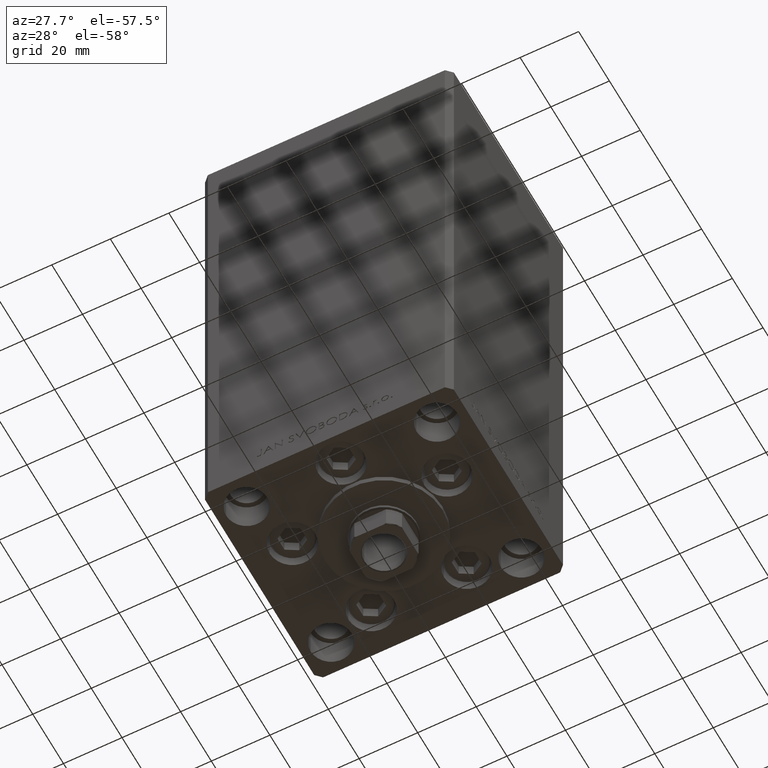
[diagram: clean part render]
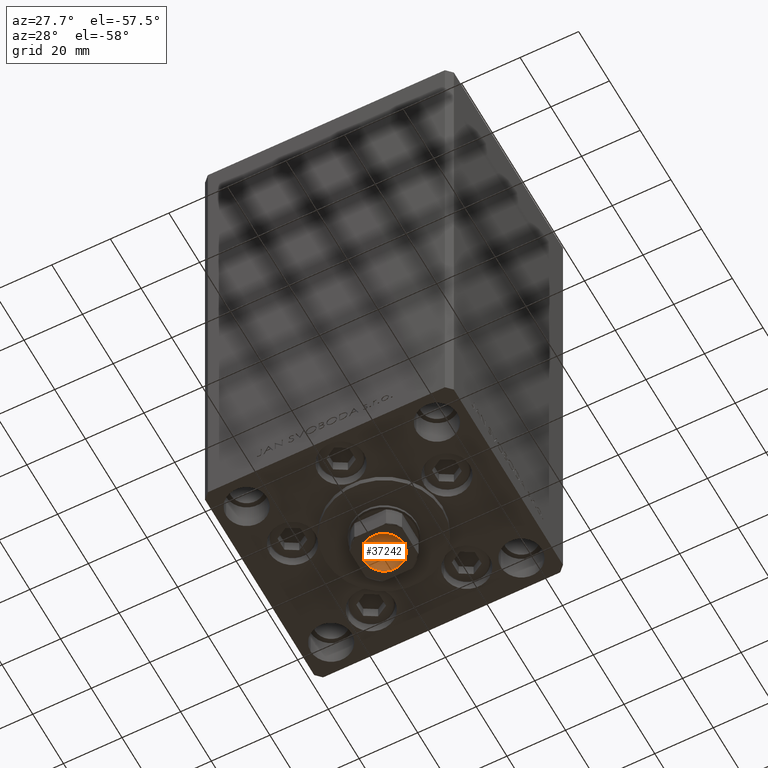
[diagram: same view with one face highlighted and labeled with its STEP entity id]
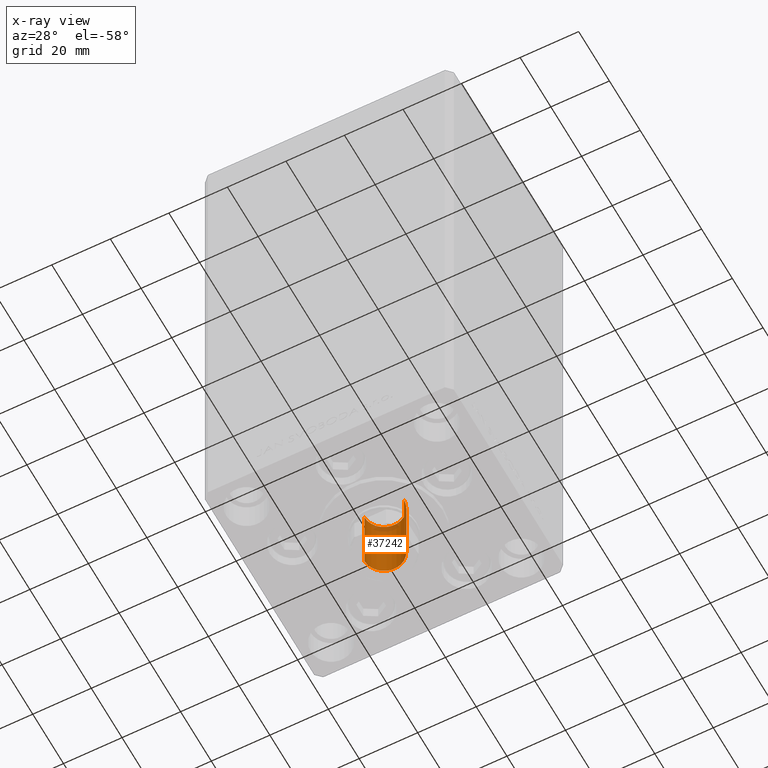
[diagram: x-ray of the same camera — body ghosted, the highlighted face saturated]
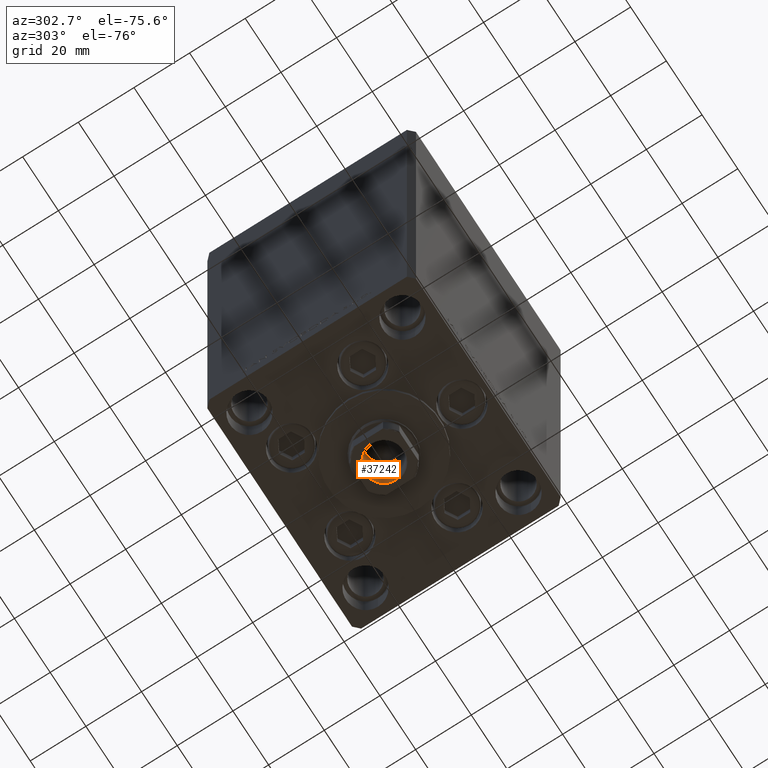
[diagram: same view with one face highlighted and labeled with its STEP entity id]
A machine part, auxiliary view. The second image highlights one B-rep face of the part: STEP entity #37242.
The next image is the same camera in x-ray: the body ghosted, the highlighted face saturated — about 7% of this face is hidden behind the body in this view.
A second angle (auxiliary view) of the same face is appended — the face is thin or edge-on in the first view.
In plain terms, the highlighted cylindrical surface (edge-blend (fillet) strip) has radius 6.75 mm, axis along (0, 0, -1).
Its self-contained STEP definition (entity closure, byte-faithful):
#350 = DIRECTION ( 'NONE',  ( -0.000000000000000000, -0.000000000000000000, 1.000000000000000000 ) ) ;
#1500 = CIRCLE ( 'NONE', #29164, 6.749999999999993783 ) ;
#3634 = CARTESIAN_POINT ( 'NONE',  ( 0.000000000000000000, 0.000000000000000000, 155.7500000000000000 ) ) ;
#4374 = FACE_OUTER_BOUND ( 'NONE', #29197, .T. ) ;
#6966 = VERTEX_POINT ( 'NONE', #8651 ) ;
#7311 = EDGE_CURVE ( 'NONE', #30785, #42852, #1500, .T. ) ;
#8651 = CARTESIAN_POINT ( 'NONE',  ( -6.749999999999995559, 8.266365894244628417E-16, 155.4499999999999886 ) ) ;
#9187 = ORIENTED_EDGE ( 'NONE', *, *, #7311, .F. ) ;
#10382 = VERTEX_POINT ( 'NONE', #43362 ) ;
#11113 = VECTOR ( 'NONE', #350, 1000.000000000000000 ) ;
#11191 = CARTESIAN_POINT ( 'NONE',  ( 0.000000000000000000, 0.000000000000000000, 130.7500000000000000 ) ) ;
#11460 = LINE ( 'NONE', #34237, #11113 ) ;
#11815 = EDGE_CURVE ( 'NONE', #30785, #10382, #11460, .T. ) ;
#15435 = AXIS2_PLACEMENT_3D ( 'NONE', #3634, #15502, #41257 ) ;
#15502 = DIRECTION ( 'NONE',  ( -0.000000000000000000, -0.000000000000000000, 1.000000000000000000 ) ) ;
#19463 = CYLINDRICAL_SURFACE ( 'NONE', #15435, 6.749999999999995559 ) ;
#19624 = ORIENTED_EDGE ( 'NONE', *, *, #11815, .T. ) ;
#21852 = DIRECTION ( 'NONE',  ( 0.000000000000000000, 0.000000000000000000, 1.000000000000000000 ) ) ;
#23412 = ORIENTED_EDGE ( 'NONE', *, *, #42157, .T. ) ;
#25109 = CARTESIAN_POINT ( 'NONE',  ( -6.749999999999993783, 8.266365894244626445E-16, 130.7500000000000000 ) ) ;
#26304 = DIRECTION ( 'NONE',  ( -0.000000000000000000, -0.000000000000000000, 1.000000000000000000 ) ) ;
#26519 = EDGE_CURVE ( 'NONE', #42852, #6966, #29717, .T. ) ;
#27040 = DIRECTION ( 'NONE',  ( 1.000000000000000000, 0.000000000000000000, 0.000000000000000000 ) ) ;
#29164 = AXIS2_PLACEMENT_3D ( 'NONE', #11191, #26304, #27040 ) ;
#29197 = EDGE_LOOP ( 'NONE', ( #47471, #9187, #19624, #23412 ) ) ;
#29295 = CARTESIAN_POINT ( 'NONE',  ( 0.000000000000000000, 0.000000000000000000, 155.4499999999999886 ) ) ;
#29717 = LINE ( 'NONE', #32526, #32009 ) ;
#30785 = VERTEX_POINT ( 'NONE', #39620 ) ;
#32009 = VECTOR ( 'NONE', #43431, 1000.000000000000000 ) ;
#32526 = CARTESIAN_POINT ( 'NONE',  ( -6.749999999999995559, 8.266365894244628417E-16, 155.7500000000000000 ) ) ;
#34237 = CARTESIAN_POINT ( 'NONE',  ( 6.749999999999995559, 0.000000000000000000, 155.7500000000000000 ) ) ;
#36480 = DIRECTION ( 'NONE',  ( 1.000000000000000000, 0.000000000000000000, 0.000000000000000000 ) ) ;
#37242 = ADVANCED_FACE ( 'NONE', ( #4374 ), #19463, .F. ) ;
#37584 = AXIS2_PLACEMENT_3D ( 'NONE', #29295, #21852, #36480 ) ;
#39620 = CARTESIAN_POINT ( 'NONE',  ( 6.749999999999993783, 0.000000000000000000, 130.7500000000000000 ) ) ;
#41257 = DIRECTION ( 'NONE',  ( 1.000000000000000000, 0.000000000000000000, 0.000000000000000000 ) ) ;
#42157 = EDGE_CURVE ( 'NONE', #10382, #6966, #46292, .T. ) ;
#42852 = VERTEX_POINT ( 'NONE', #25109 ) ;
#43362 = CARTESIAN_POINT ( 'NONE',  ( 6.749999999999995559, 0.000000000000000000, 155.4499999999999886 ) ) ;
#43431 = DIRECTION ( 'NONE',  ( -0.000000000000000000, -0.000000000000000000, 1.000000000000000000 ) ) ;
#46292 = CIRCLE ( 'NONE', #37584, 6.749999999999995559 ) ;
#47471 = ORIENTED_EDGE ( 'NONE', *, *, #26519, .F. ) ;